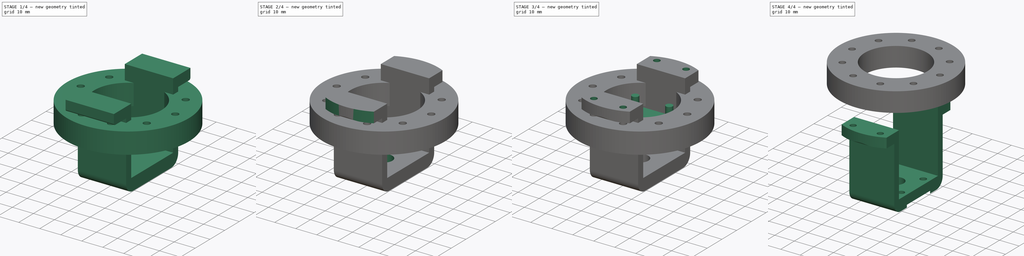
[diagram: build sequence overview — one tinted view per stage of 4, left to right]
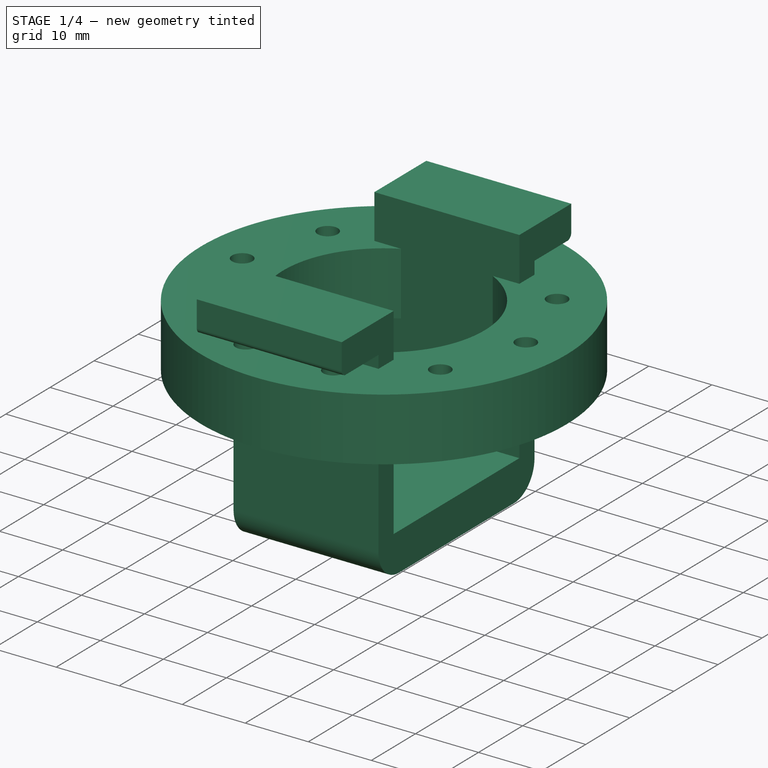
[diagram: stage 1 of 4 — iso view after this stage's code; geometry added in this stage tinted green]
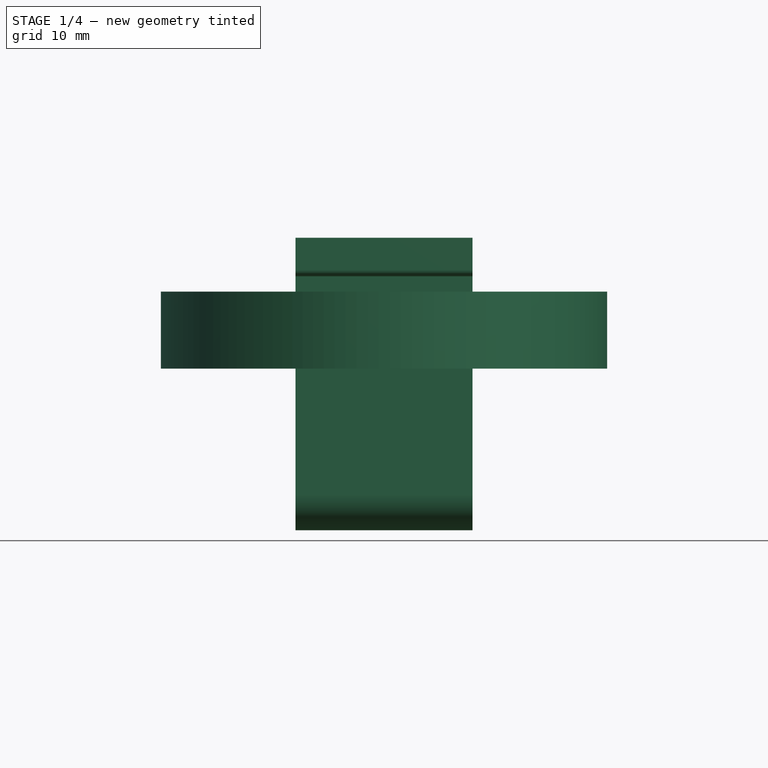
[diagram: stage 1 of 4 — front view after this stage's code; geometry added in this stage tinted green]
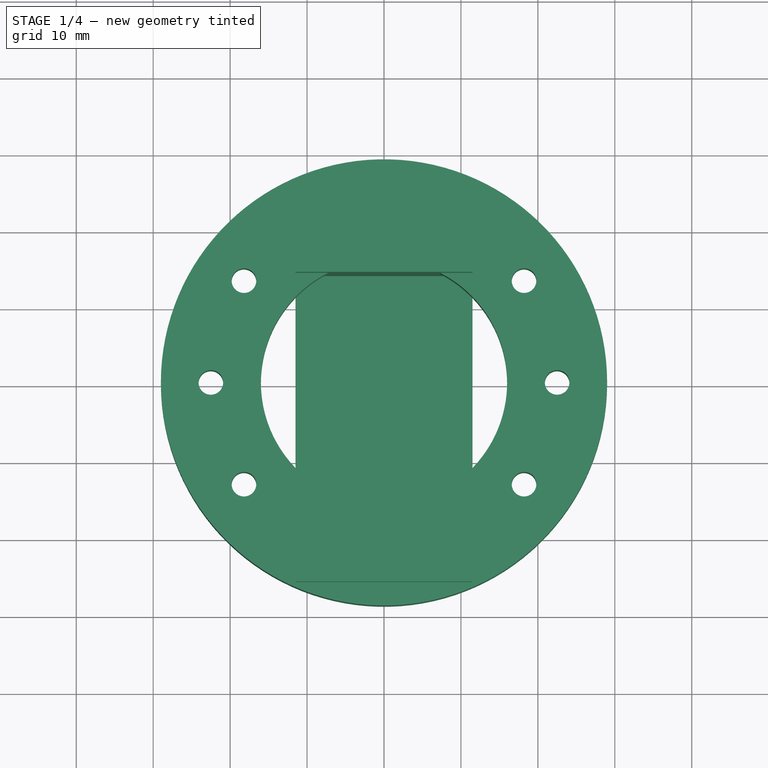
[diagram: stage 1 of 4 — top view after this stage's code; geometry added in this stage tinted green]
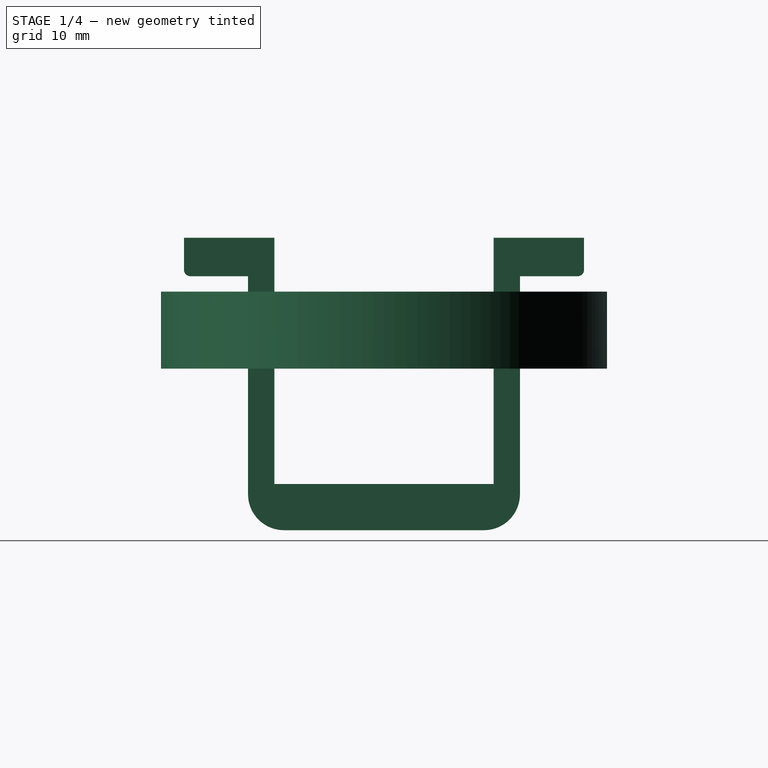
[diagram: stage 1 of 4 — right view after this stage's code; geometry added in this stage tinted green]
FCSTD DOCUMENT  (FreeCAD 1.0R39109 (Git))
Label: Robot
License: All rights reserved
LicenseURL: https://en.wikipedia.org/wiki/All_rights_reserved
objects: Part::Feature×10, Sketcher::SketchObject×7, PartDesign::Pad×5, PartDesign::Body×3, PartDesign::Hole×2, Spreadsheet::Sheet×2, PartDesign::Pocket×1, Part::Cut×1, App::TextDocument×1, Image::ImagePlane×1, App::VarSet×1
note: 52 computed .brp shape members not serialized (recipe doc carries the construction recipe); baked Part::Feature solids carry a one-line shape summary decoded from their .brp

FEATURE [PartDesign::Body] Body001  label="AS5600"
  AllowCompound = false
  Group = -> [Sketch003,Pad002,Sketch004,Pad003,Sketch005,Pad004]
  Origin = -> Origin001
  Placement = pos=(0,0,-50.5) rot=(0,0,1;0rad)
  Tip = -> Pad004
FEATURE [Sketcher::SketchObject] Sketch
  ArcFitTolerance = 1e-06
  AttachmentSupport = -> [YZ_Plane]
  FullyConstrained = true
  MakeInternals = false
  MapMode = 5
  Placement = pos=(0,0,0) rot=(0.57735,0.57735,0.57735;2.0944rad)
  sketch-geometry (20):
    g0: LineSegment StartX=-26 StartY=17 StartZ=0 EndX=-26 EndY=12.85 EndZ=0
    g1: LineSegment StartX=-25.15 StartY=12 StartZ=0 EndX=-17.67 EndY=12 EndZ=0
    g2: LineSegment StartX=26 StartY=12.85 StartZ=0 EndX=26 EndY=17 EndZ=0
    g3: LineSegment StartX=-14.25 StartY=17 StartZ=0 EndX=-14.25 EndY=-15 EndZ=0
    g4: LineSegment StartX=-14.25 StartY=-15 StartZ=0 EndX=14.25 EndY=-15 EndZ=0
    g5: LineSegment StartX=14.25 StartY=-15 StartZ=0 EndX=14.25 EndY=17 EndZ=0
    g6: LineSegment StartX=-17.67 StartY=12 StartZ=0 EndX=-17.67 EndY=-16.33 EndZ=0
    g7: LineSegment StartX=-13 StartY=-21 StartZ=0 EndX=13 EndY=-21 EndZ=0
    g8: LineSegment StartX=17.67 StartY=-16.33 StartZ=0 EndX=17.67 EndY=12 EndZ=0
    g9: LineSegment StartX=17.67 StartY=12 StartZ=0 EndX=25.15 EndY=12 EndZ=0
    g10: LineSegment StartX=-26 StartY=17 StartZ=0 EndX=-14.25 EndY=17 EndZ=0
    g11: LineSegment StartX=14.25 StartY=17 StartZ=0 EndX=26 EndY=17 EndZ=0
    g12: ArcOfCircle CenterX=-13 CenterY=-16.33 CenterZ=0 NormalX=0 NormalY=0 NormalZ=1 AngleXU=0 Radius=4.67 StartAngle=3.14159 EndAngle=4.71239
    g13: GeomPoint [constr] X=-17.67 Y=-21 Z=0
    g14: ArcOfCircle CenterX=13 CenterY=-16.33 CenterZ=0 NormalX=0 NormalY=0 NormalZ=1 AngleXU=0 Radius=4.67 StartAngle=4.71239 EndAngle=6.28319
    g15: GeomPoint [constr] X=17.67 Y=-21 Z=0
    g16: ArcOfCircle CenterX=-25.15 CenterY=12.85 CenterZ=0 NormalX=0 NormalY=0 NormalZ=1 AngleXU=0 Radius=0.85 StartAngle=3.14159 EndAngle=4.71239
    g17: GeomPoint [constr] X=-26 Y=12 Z=0
    g18: ArcOfCircle CenterX=25.15 CenterY=12.85 CenterZ=0 NormalX=0 NormalY=0 NormalZ=1 AngleXU=0 Radius=0.85 StartAngle=4.71239 EndAngle=6.28319
    g19: GeomPoint [constr] X=26 Y=12 Z=0
  constraints (43):
    c: Coincident(g3,g4)
    c: Coincident(g4,g5)
    c: Coincident(g1,g6)
    c: Coincident(g2,g11)
    c: Coincident(g8,g9)
    c: Coincident(g5,g11)
    c: DistanceX(g4,g4) = 28.5
    c: DistanceY(g13,g6) = 33
    c: Coincident(g0,g10)
    c: Coincident(g3,g10)
    c: Symmetric(g3,g5,g-2)
    c: Symmetric(g1,g8,g-2)
    c: Symmetric(g13,g15,g-2)
    c: Symmetric(g3,g4,g-2)
    c: Symmetric(g17,g19,g-2)
    c: Symmetric(g0,g2,g-2)
    c: PointOnObject(g13,g6)
    c: PointOnObject(g13,g7)
    c: Tangent(g6,g12) = -1.5708
    c: Tangent(g7,g12) = -1.5708
    c: PointOnObject(g15,g7)
    c: Tangent(g7,g14) = -1.5708
    c: Tangent(g8,g14) = -1.5708
    c: PointOnObject(g17,g0)
    c: PointOnObject(g17,g1)
    c: Tangent(g0,g16) = -1.5708
    c: Tangent(g1,g16) = -1.5708
    c: PointOnObject(g19,g2)
    c: Tangent(g2,g18) = -1.5708
    c: Tangent(g9,g18) = -1.5708
    c: Radius(g18) = 0.85
    c: Radius(g12) = 4.67
    c: Symmetric(g12,g14,g-2)
    c: Symmetric(g16,g18,g-2)
    c: DistanceX(g12,g14) = 26
    c: DistanceY(g15,g5) = 38
    c: Parallel(g3,g5)
    c: DistanceX(g0,g2) = 52
    c: Block(g3)
    c: Parallel(g6,g8)
    c: Perpendicular(g10,g3)
    c: Perpendicular(g10,g0)
    c: Perpendicular(g1,g6)
FEATURE [PartDesign::Pad] Pad
  Direction = (1,0,0)
  Length = 23
  Length2 = 10
  Midplane = true
  Placement = pos=(0,0,0) rot=(1,1,1;2.0944rad)
  Profile = -> Sketch
  ReferenceAxis = -> Sketch [N_Axis]
  Refine = true
  Suppressed = false
  Type = 0
FEATURE [App::TextDocument] Text_document  label="Text document"
FEATURE [Image::ImagePlane] _0250510_190851  label="20250510_190851"
  Placement = pos=(0.35,-0.3,-49) rot=(0,0,1;1.5708rad)
  XSize = 88.1427
  YSize = 88.1427
FEATURE [Spreadsheet::Sheet] Spreadsheet  label="encoder"
  cells = A1='hole; B1(hole)=3.2; A2='size; B2(size)=23
FEATURE [App::VarSet] VarSet
FEATURE [Sketcher::SketchObject] Sketch008  label="Joint"
  ArcFitTolerance = 1e-06
  AttachmentSupport = -> [XY_Plane003]
  FullyConstrained = true
  MakeInternals = false
  MapMode = 5
  expr: Constraints[0] = <<hand>>.hole_d
  expr: Constraints[10] = <<Robot>>#<<hand>>.bearing_d
  expr: Constraints[12] = <<hand>>.ring_d
  expr: Constraints[20] = <<Robot>>#<<hand>>.pins_d
  sketch-geometry (13):
    g0: Circle CenterX=-22.5 CenterY=-7.27001e-08 CenterZ=0 NormalX=0 NormalY=0 NormalZ=1 AngleXU=0 Radius=1.6
    g1: Circle CenterX=-18.2003 CenterY=13.2288 CenterZ=0 NormalX=0 NormalY=0 NormalZ=1 AngleXU=0 Radius=1.6
    g2: Circle CenterX=-6.9491 CenterY=21.4 CenterZ=0 NormalX=0 NormalY=0 NormalZ=1 AngleXU=0 Radius=1.6
    g3: Circle CenterX=6.9509 CenterY=21.3994 CenterZ=0 NormalX=0 NormalY=0 NormalZ=1 AngleXU=0 Radius=1.6
    g4: Circle CenterX=18.2003 CenterY=13.2288 CenterZ=0 NormalX=0 NormalY=0 NormalZ=1 AngleXU=0 Radius=1.6
    g5: Circle CenterX=22.5 CenterY=7.27001e-08 CenterZ=0 NormalX=0 NormalY=0 NormalZ=1 AngleXU=0 Radius=1.6
    g6: Circle CenterX=18.2003 CenterY=-13.2288 CenterZ=0 NormalX=0 NormalY=0 NormalZ=1 AngleXU=0 Radius=1.6
    g7: Circle CenterX=6.9491 CenterY=-21.4 CenterZ=0 NormalX=0 NormalY=0 NormalZ=1 AngleXU=0 Radius=1.6
    g8: Circle CenterX=-6.9509 CenterY=-21.3994 CenterZ=0 NormalX=0 NormalY=0 NormalZ=1 AngleXU=0 Radius=1.6
    g9: Circle CenterX=-18.2003 CenterY=-13.2288 CenterZ=0 NormalX=0 NormalY=0 NormalZ=1 AngleXU=0 Radius=1.6
    g10: Circle CenterX=0 CenterY=0 CenterZ=0 NormalX=0 NormalY=0 NormalZ=1 AngleXU=0 Radius=16
    g11: Circle CenterX=0 CenterY=0 CenterZ=0 NormalX=0 NormalY=0 NormalZ=1 AngleXU=0 Radius=29
    g12: Circle [constr] CenterX=0 CenterY=0 CenterZ=0 NormalX=0 NormalY=0 NormalZ=1 AngleXU=0 Radius=22.5
  constraints (22):
    c: Diameter(g0) = 3.2
    c: Equal(g0, g1-g9) x9
    c: Diameter(g10) = 32
    c: Coincident(g10,g-1)
    c: Diameter(g11) = 58
    c: Coincident(g11,g10)
    c: DistanceX(g0) = -22.5
    c: Distance(g0,g1) = 13.91
    c: Coincident(g12,g10)
    c: PointOnObject(g0,g12)
    c: PointOnObject(g1,g12)
    c: PointOnObject(g2,g12)
    c: Diameter(g12) = 45
    c: PointOnObject(g3,g12)
    c: DistanceY(g2) = 21.4
    c: Symmetric(g0,g5,g10)
    c: Symmetric(g1,g6,g10)
    c: Symmetric(g7,g2,g10)
    c: Symmetric(g8,g3,g10)
    c: Symmetric(g4,g9,g10)
    c: DistanceX(g2,g3) = 13.9
    c: Symmetric(g1,g4,g-2)
FEATURE [Spreadsheet::Sheet] Spreadsheet001  label="hand"
  cells = A1='pins_d; B1(pins_d)=45; A2='hole_d; B2(hole_d)=3.2; A3='ring_d; B3(ring_d)=58; A4='bearing_d; B4(bearing_d)=32
FEATURE [PartDesign::Pad] Pad005
  Direction = (0,0,1)
  Length = 10
  Length2 = 10
  Profile = -> Sketch008
  ReferenceAxis = -> Sketch008 [N_Axis]
  Refine = true
  Suppressed = false
  Type = 0
FEATURE [PartDesign::Body] Body002  label="Hand"
  AllowCompound = false
  Group = -> [Sketch008,Pad005]
  Origin = -> Origin002
  Tip = -> Pad005
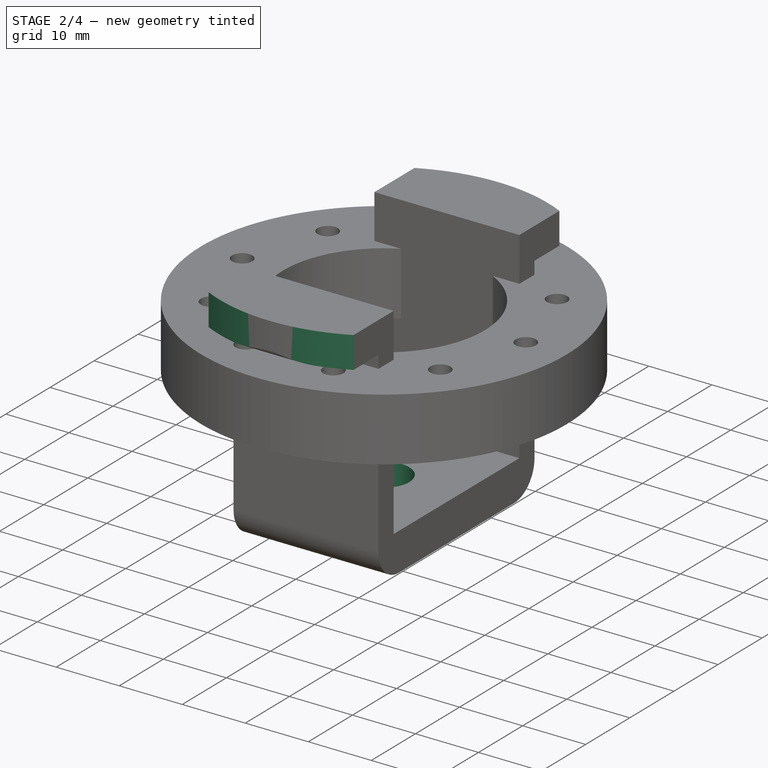
[diagram: stage 2 of 4 — iso view after this stage's code; geometry added in this stage tinted green]
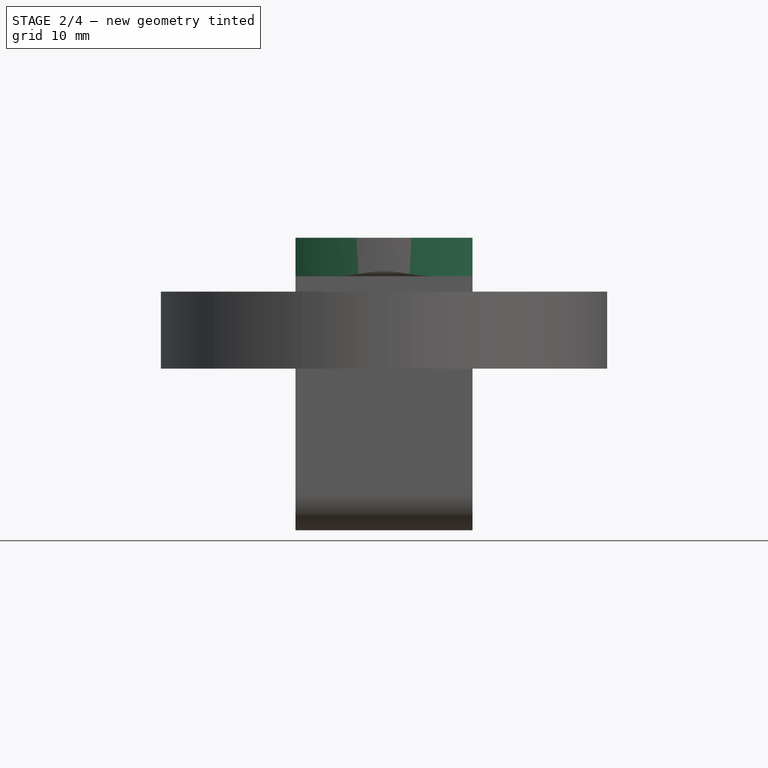
[diagram: stage 2 of 4 — front view after this stage's code; geometry added in this stage tinted green]
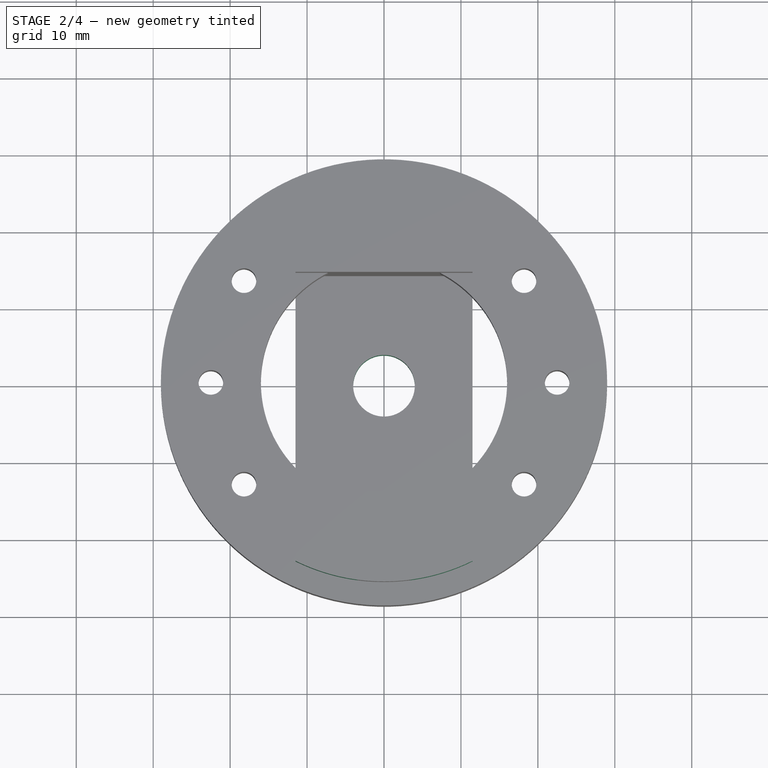
[diagram: stage 2 of 4 — top view after this stage's code; geometry added in this stage tinted green]
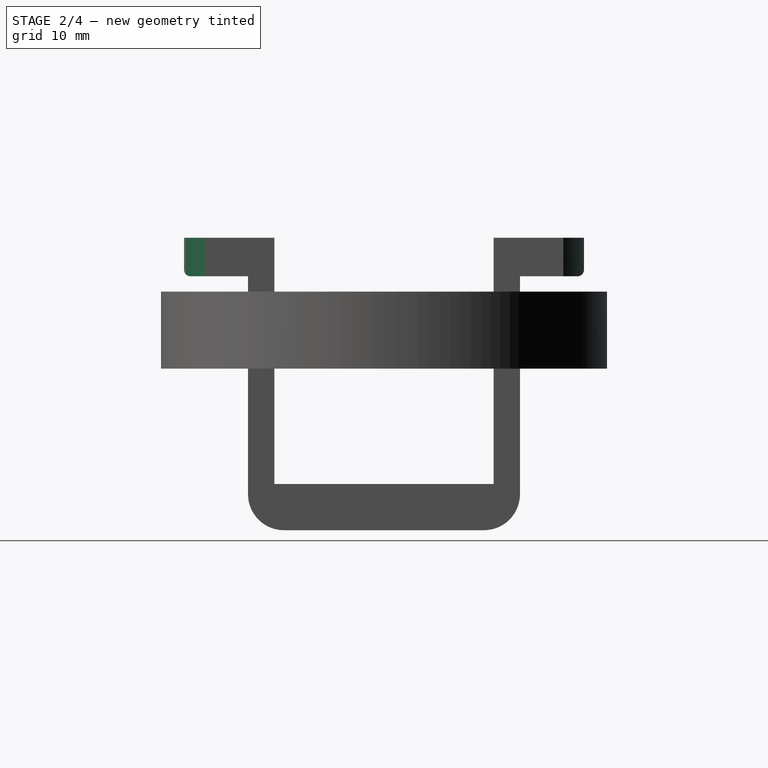
[diagram: stage 2 of 4 — right view after this stage's code; geometry added in this stage tinted green]
FEATURE [Part::Feature] Shape009  label="Motor"
  Placement = pos=(0,0,-41.3) rot=(0,0,1;0rad)
  shape: bbox 32.81 x 32.81 x 54.34 mm, 9 faces (baked)
FEATURE [Sketcher::SketchObject] Sketch006  label="Holes"
  ArcFitTolerance = 1e-06
  AttachmentSupport = -> [XY_Plane]
  FullyConstrained = true
  MakeInternals = false
  MapMode = 5
  sketch-geometry (2):
    g0: Circle CenterX=0 CenterY=0 CenterZ=0 NormalX=0 NormalY=0 NormalZ=1 AngleXU=0 Radius=26
    g1: Circle CenterX=0 CenterY=0 CenterZ=0 NormalX=0 NormalY=0 NormalZ=1 AngleXU=0 Radius=50
  constraints (4):
    c: Radius(g0) = 26
    c: Coincident(g0,g-1)
    c: Coincident(g1,g0)
    c: Radius(g1) = 50
FEATURE [PartDesign::Hole] Hole
  BaseFeature = -> Pad
  CustomThreadClearance = 0
  Depth = 25
  DepthType = 0
  Diameter = 8
  DrillForDepth = false
  DrillPoint = 1
  DrillPointAngle = 118
  HoleCutCountersinkAngle = 90
  HoleCutCustomValues = false
  HoleCutDepth = 0
  HoleCutDiameter = 6.1
  HoleCutType = 0
  ModelThread = false
  Placement = pos=(0,0,0) rot=(1,1,1;2.0944rad)
  Profile = -> Sketch006
  Refine = true
  Suppressed = false
  Tapered = false
  TaperedAngle = 90
  ThreadClass = 0
  ThreadDepth = 25
  ThreadDepthType = 0
  ThreadDirection = 0
  ThreadFit = 0
  ThreadSize = 0
  ThreadType = 0
  Threaded = false
  UseCustomThreadClearance = false
FEATURE [PartDesign::Pocket] Pocket
  BaseFeature = -> Hole
  Direction = (0,0,-1)
  Length = 50
  Length2 = 5
  Placement = pos=(0,0,0) rot=(1,1,1;2.0944rad)
  Profile = -> Sketch006
  ReferenceAxis = -> Sketch006 [N_Axis]
  Refine = true
  Reversed = true
  Suppressed = false
  Type = 0
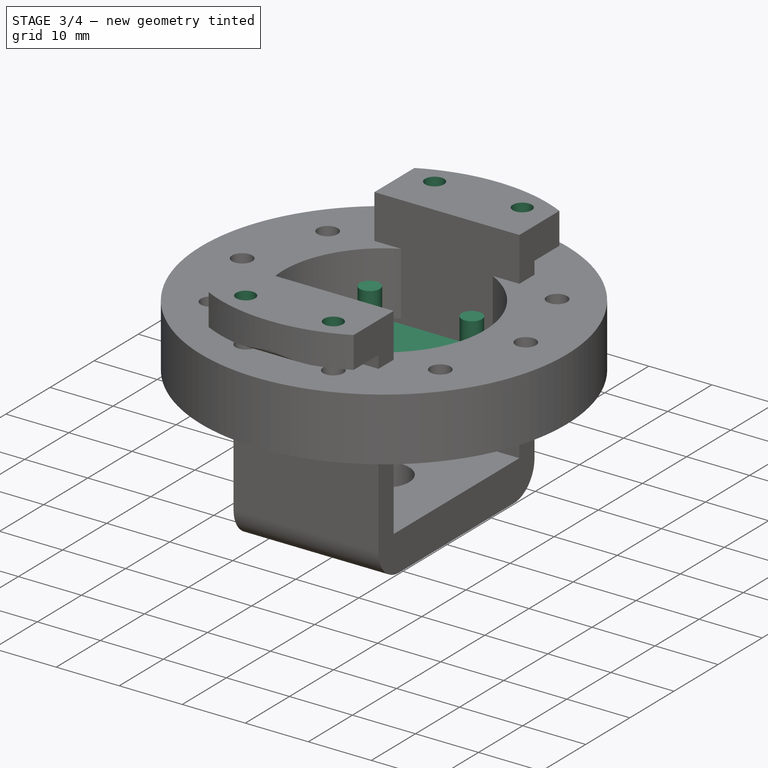
[diagram: stage 3 of 4 — iso view after this stage's code; geometry added in this stage tinted green]
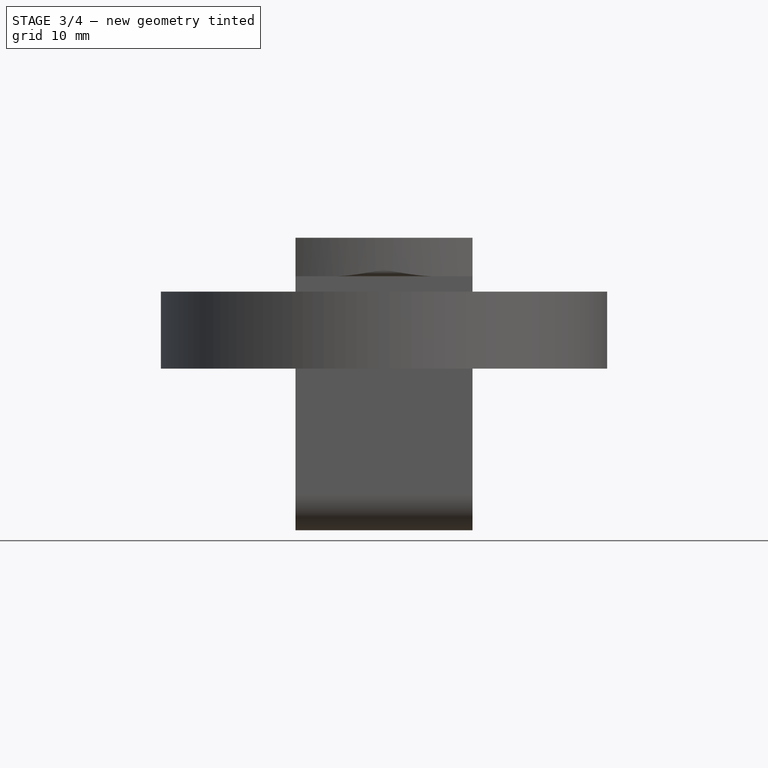
[diagram: stage 3 of 4 — front view after this stage's code; geometry added in this stage tinted green]
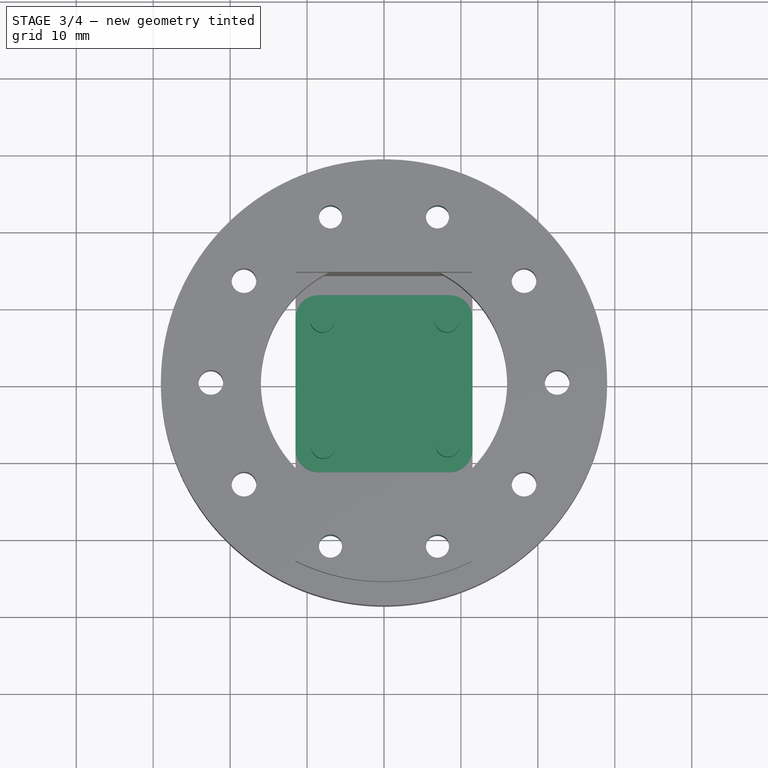
[diagram: stage 3 of 4 — top view after this stage's code; geometry added in this stage tinted green]
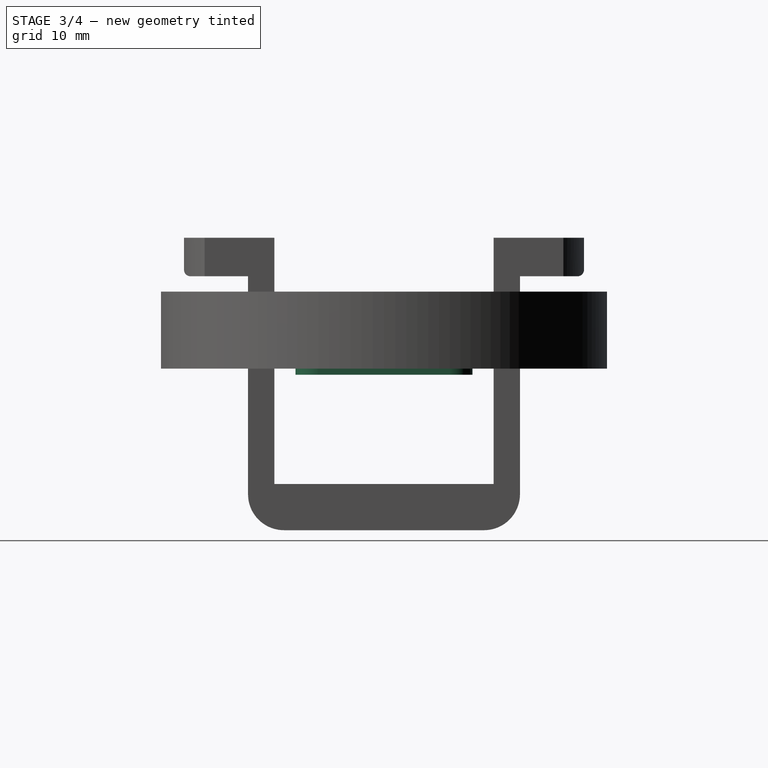
[diagram: stage 3 of 4 — right view after this stage's code; geometry added in this stage tinted green]
FEATURE [Sketcher::SketchObject] Sketch003  label="Base"
  ArcFitTolerance = 1e-06
  AttachmentSupport = -> [XY_Plane002]
  FullyConstrained = true
  MakeInternals = false
  MapMode = 5
  expr: Constraints[4] = Encoder#<<encoder>>.size
  expr: Constraints[5] = Encoder#<<encoder>>.size
  sketch-geometry (12):
    g0: LineSegment StartX=-11.5 StartY=8.5 StartZ=0 EndX=-11.5 EndY=-8.5 EndZ=0
    g1: LineSegment StartX=-8.5 StartY=-11.5 StartZ=0 EndX=8.5 EndY=-11.5 EndZ=0
    g2: LineSegment StartX=11.5 StartY=-8.5 StartZ=0 EndX=11.5 EndY=8.5 EndZ=0
    g3: LineSegment StartX=8.5 StartY=11.5 StartZ=0 EndX=-8.5 EndY=11.5 EndZ=0
    g4: ArcOfCircle CenterX=-8.5 CenterY=-8.5 CenterZ=0 NormalX=0 NormalY=0 NormalZ=1 AngleXU=0 Radius=3 StartAngle=3.14159 EndAngle=4.71239
    g5: GeomPoint [constr] X=-11.5 Y=-11.5 Z=0
    g6: ArcOfCircle CenterX=8.5 CenterY=8.5 CenterZ=0 NormalX=0 NormalY=0 NormalZ=1 AngleXU=0 Radius=3 StartAngle=1e-16 EndAngle=1.5708
    g7: GeomPoint [constr] X=11.5 Y=11.5 Z=0
    g8: ArcOfCircle CenterX=8.5 CenterY=-8.5 CenterZ=0 NormalX=0 NormalY=0 NormalZ=1 AngleXU=0 Radius=3 StartAngle=4.71239 EndAngle=6.28319
    g9: GeomPoint [constr] X=11.5 Y=-11.5 Z=0
    g10: ArcOfCircle CenterX=-8.5 CenterY=8.5 CenterZ=0 NormalX=0 NormalY=0 NormalZ=1 AngleXU=0 Radius=3 StartAngle=1.5708 EndAngle=3.14159
    g11: GeomPoint [constr] X=-11.5 Y=11.5 Z=0
  constraints (27):
    c: Vertical(g0)
    c: Vertical(g2)
    c: Horizontal(g1)
    c: Horizontal(g3)
    c: DistanceX(g11,g7) = 23
    c: DistanceY(g5,g11) = 23
    c: Symmetric(g11,g9,g-1)
    c: PointOnObject(g5,g0)
    c: PointOnObject(g5,g1)
    c: Tangent(g0,g4) = -1.5708
    c: Tangent(g1,g4) = -1.5708
    c: PointOnObject(g7,g2)
    c: PointOnObject(g7,g3)
    c: Tangent(g2,g6) = -1.5708
    c: Tangent(g3,g6) = -1.5708
    c: PointOnObject(g9,g1)
    c: PointOnObject(g9,g2)
    c: Tangent(g1,g8) = -1.5708
    c: Tangent(g2,g8) = -1.5708
    c: PointOnObject(g11,g0)
    c: PointOnObject(g11,g3)
    c: Tangent(g0,g10) = -1.5708
    c: Tangent(g3,g10) = -1.5708
    c: Diameter(g4) = 6
    c: Diameter(g10) = 6
    c: Diameter(g8) = 6
    c: Diameter(g6) = 6
FEATURE [PartDesign::Pad] Pad002  label="Pad16"
  Direction = (0,0,1)
  Length = 1.6
  Length2 = 10
  Midplane = true
  Profile = -> Sketch003
  ReferenceAxis = -> Sketch003 [N_Axis]
  Refine = true
  Suppressed = false
  Type = 0
FEATURE [Sketcher::SketchObject] Sketch004  label="Screws"
  ArcFitTolerance = 1e-06
  AttachmentSupport = -> [Pad002]
  FullyConstrained = true
  MakeInternals = false
  MapMode = 5
  Placement = pos=(0,0,0.8) rot=(0,0,1;0rad)
  expr: Constraints[0] = Encoder#<<encoder>>.hole
  expr: Constraints[1] = Encoder#<<encoder>>.hole
  expr: Constraints[2] = Encoder#<<encoder>>.hole
  expr: Constraints[3] = Encoder#<<encoder>>.hole
  sketch-geometry (4):
    g0: Circle CenterX=-8 CenterY=8.2 CenterZ=0 NormalX=0 NormalY=0 NormalZ=1 AngleXU=0 Radius=1.6
    g1: Circle CenterX=8.2 CenterY=8.2 CenterZ=0 NormalX=0 NormalY=0 NormalZ=1 AngleXU=0 Radius=1.6
    g2: Circle CenterX=-7.9 CenterY=-8.2 CenterZ=0 NormalX=0 NormalY=0 NormalZ=1 AngleXU=0 Radius=1.6
    g3: Circle CenterX=8.3 CenterY=-8 CenterZ=0 NormalX=0 NormalY=0 NormalZ=1 AngleXU=0 Radius=1.6
  constraints (12):
    c: Diameter(g0) = 3.2
    c: Diameter(g1) = 3.2
    c: Diameter(g2) = 3.2
    c: Diameter(g3) = 3.2
    c: DistanceX(g0,g-1) = 8
    c: DistanceY(g-1,g0) = 8.2
    c: DistanceY(g-1,g1) = 8.2
    c: DistanceX(g-1,g1) = 8.2
    c: DistanceX(g-1,g3) = 8.3
    c: DistanceY(g3,g-1) = 8
    c: DistanceY(g2,g-1) = 8.2
    c: DistanceX(g2,g-1) = 7.9
FEATURE [PartDesign::Pad] Pad003  label="Pad40"
  BaseFeature = -> Pad002
  Direction = (0,0,1)
  Length = 6
  Length2 = 10
  Profile = -> Sketch004
  ReferenceAxis = -> Sketch004 [N_Axis]
  Refine = true
  Suppressed = false
  Type = 0
FEATURE [Sketcher::SketchObject] Sketch007  label="Pins"
  ArcFitTolerance = 1e-06
  AttachmentSupport = -> [XY_Plane]
  FullyConstrained = true
  MakeInternals = false
  MapMode = 5
  sketch-geometry (4):
    g0: Circle CenterX=-6.955 CenterY=21.3981 CenterZ=0 NormalX=0 NormalY=0 NormalZ=1 AngleXU=0 Radius=1.5
    g1: Circle CenterX=6.955 CenterY=21.3981 CenterZ=0 NormalX=0 NormalY=0 NormalZ=1 AngleXU=0 Radius=1.5
    g2: Circle CenterX=-6.955 CenterY=-21.3981 CenterZ=0 NormalX=0 NormalY=0 NormalZ=1 AngleXU=0 Radius=1.5
    g3: Circle CenterX=6.955 CenterY=-21.3981 CenterZ=0 NormalX=0 NormalY=0 NormalZ=1 AngleXU=0 Radius=1.5
  constraints (9):
    c: Radius(g0) = 1.5
    c: Radius(g1) = 1.5
    c: Radius(g2) = 1.5
    c: Radius(g3) = 1.5
    c: Symmetric(g0,g2,g-1)
    c: Symmetric(g0,g1,g-2)
    c: Symmetric(g2,g3,g-2)
    c: Distance(g-1,g0) = 22.5
    c: DistanceX(g2,g3) = 13.91
FEATURE [PartDesign::Hole] Hole001
  BaseFeature = -> Pocket
  CustomThreadClearance = 0
  Depth = 32
  DepthType = 0
  Diameter = 3
  DrillForDepth = false
  DrillPoint = 1
  DrillPointAngle = 118
  HoleCutCountersinkAngle = 90
  HoleCutCustomValues = false
  HoleCutDepth = 0
  HoleCutDiameter = 6.1
  HoleCutType = 0
  ModelThread = false
  Placement = pos=(0,0,0) rot=(1,1,1;2.0944rad)
  Profile = -> Sketch007
  Refine = true
  Reversed = true
  Suppressed = false
  Tapered = false
  TaperedAngle = 90
  ThreadClass = 0
  ThreadDepth = 32
  ThreadDepthType = 0
  ThreadDirection = 0
  ThreadFit = 0
  ThreadSize = 0
  ThreadType = 0
  Threaded = false
  UseCustomThreadClearance = false
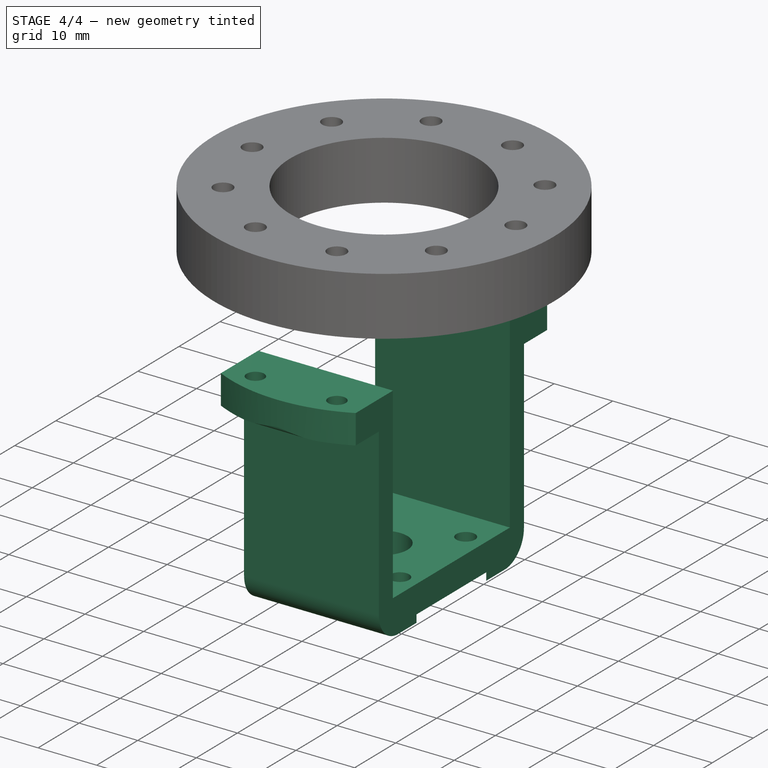
[diagram: stage 4 of 4 — iso view after this stage's code; geometry added in this stage tinted green]
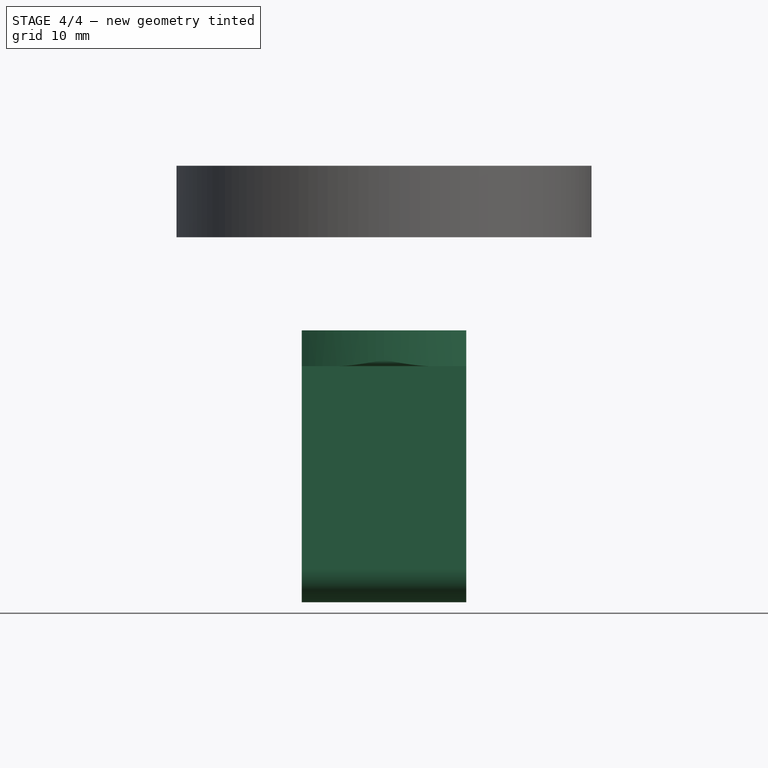
[diagram: stage 4 of 4 — front view after this stage's code; geometry added in this stage tinted green]
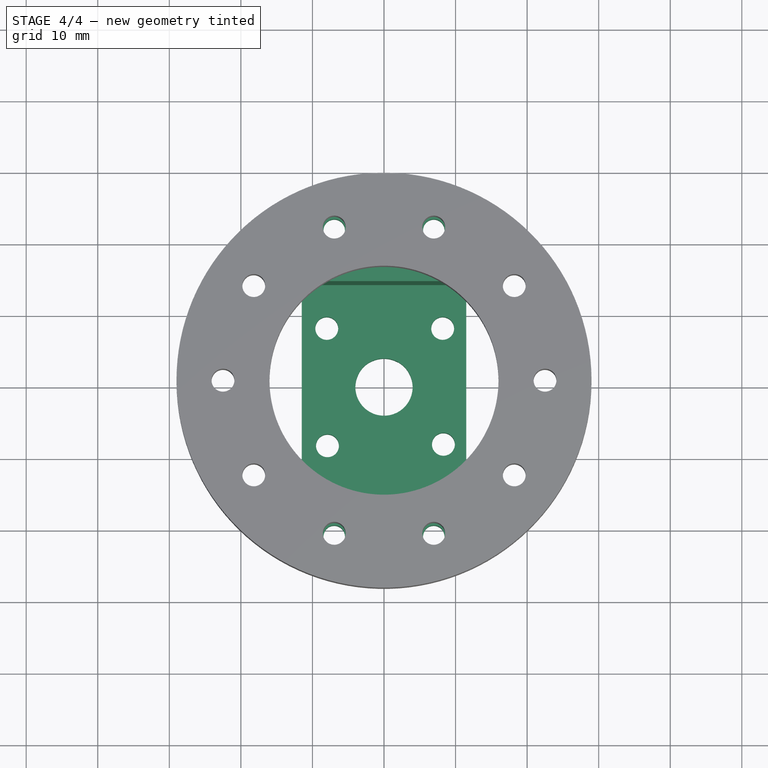
[diagram: stage 4 of 4 — top view after this stage's code; geometry added in this stage tinted green]
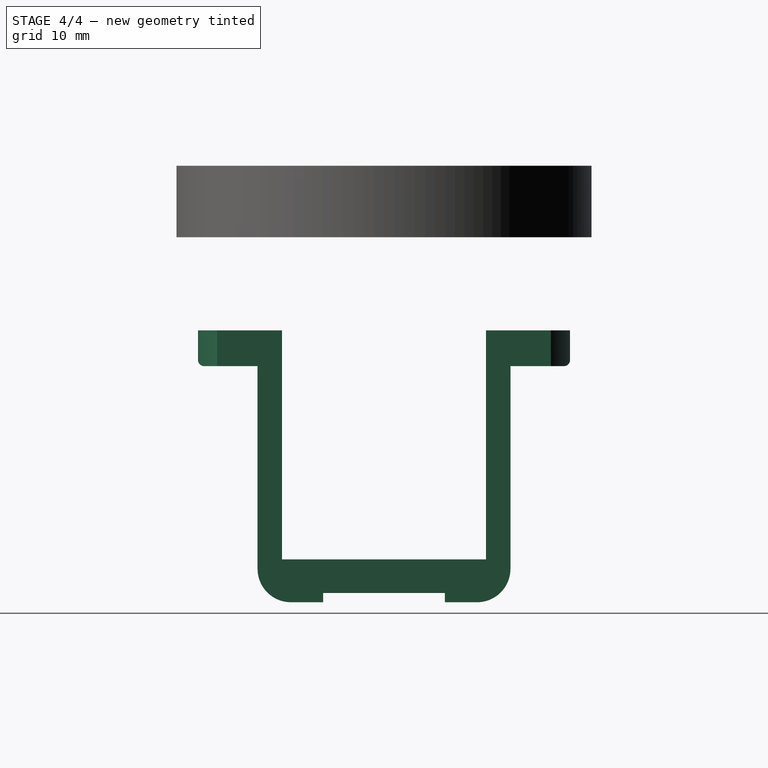
[diagram: stage 4 of 4 — right view after this stage's code; geometry added in this stage tinted green]
FEATURE [Sketcher::SketchObject] Sketch005  label="Elements"
  ArcFitTolerance = 1e-06
  AttachmentSupport = -> [Pad003]
  FullyConstrained = true
  MakeInternals = false
  MapMode = 5
  Placement = pos=(0,0,0.8) rot=(0,1,0;3.14159rad)
  sketch-geometry (21):
    g0: ArcOfCircle CenterX=-5.6 CenterY=6.7 CenterZ=0 NormalX=0 NormalY=0 NormalZ=1 AngleXU=0 Radius=1.5 StartAngle=1.5708 EndAngle=4.71239
    g1: ArcOfCircle CenterX=4 CenterY=6.7 CenterZ=0 NormalX=0 NormalY=0 NormalZ=1 AngleXU=0 Radius=1.5 StartAngle=4.71239 EndAngle=7.85398
    g2: LineSegment StartX=-5.6 StartY=8.2 StartZ=0 EndX=4 EndY=8.2 EndZ=0
    g3: LineSegment StartX=-5.6 StartY=5.2 StartZ=0 EndX=4 EndY=5.2 EndZ=0
    g4: ArcOfCircle CenterX=-3.5 CenterY=-6.8 CenterZ=0 NormalX=0 NormalY=0 NormalZ=1 AngleXU=0 Radius=1.5 StartAngle=1.5708 EndAngle=4.71239
    g5: ArcOfCircle CenterX=3.5 CenterY=-6.8 CenterZ=0 NormalX=0 NormalY=0 NormalZ=1 AngleXU=0 Radius=1.5 StartAngle=4.71239 EndAngle=7.85398
    g6: LineSegment StartX=-3.5 StartY=-5.3 StartZ=0 EndX=3.5 EndY=-5.3 EndZ=0
    g7: LineSegment StartX=-3.5 StartY=-8.3 StartZ=0 EndX=3.5 EndY=-8.3 EndZ=0
    g8: LineSegment StartX=-3.5 StartY=-3.5 StartZ=0 EndX=3.5 EndY=-3.5 EndZ=0
    g9: LineSegment StartX=3.5 StartY=-3.5 StartZ=0 EndX=3.5 EndY=3.5 EndZ=0
    g10: LineSegment StartX=3.5 StartY=3.5 StartZ=0 EndX=-3.5 EndY=3.5 EndZ=0
    g11: LineSegment StartX=-3.5 StartY=3.5 StartZ=0 EndX=-3.5 EndY=-3.5 EndZ=0
    g12: GeomPoint [constr] X=0 Y=0 Z=0
    g13: ArcOfCircle CenterX=-5.6 CenterY=-3.5 CenterZ=0 NormalX=0 NormalY=0 NormalZ=1 AngleXU=0 Radius=1.4 StartAngle=3.14159 EndAngle=6.28319
    g14: ArcOfCircle CenterX=-5.6 CenterY=3.5 CenterZ=0 NormalX=0 NormalY=0 NormalZ=1 AngleXU=0 Radius=1.4 StartAngle=-3.4142e-12 EndAngle=3.14159
    g15: LineSegment StartX=-7 StartY=-3.5 StartZ=0 EndX=-7 EndY=3.5 EndZ=0
    g16: LineSegment StartX=-4.2 StartY=-3.5 StartZ=0 EndX=-4.2 EndY=3.5 EndZ=0
    g17: ArcOfCircle CenterX=7.4 CenterY=4 CenterZ=0 NormalX=0 NormalY=0 NormalZ=1 AngleXU=0 Radius=1.5 StartAngle=0 EndAngle=3.14159
    g18: ArcOfCircle CenterX=7.4 CenterY=-3.38 CenterZ=0 NormalX=0 NormalY=0 NormalZ=1 AngleXU=0 Radius=1.5 StartAngle=3.14159 EndAngle=6.28319
    g19: LineSegment StartX=8.9 StartY=4 StartZ=0 EndX=8.9 EndY=-3.38 EndZ=0
    g20: LineSegment StartX=5.9 StartY=4 StartZ=0 EndX=5.9 EndY=-3.38 EndZ=0
  constraints (51):
    c: Tangent(g0,g2) = 1.5708
    c: Tangent(g0,g3) = -1.5708
    c: Tangent(g1,g2) = 1.5708
    c: Tangent(g1,g3) = -1.5708
    c: Equal(g0,g1)
    c: Tangent(g4,g6) = 1.5708
    c: Tangent(g4,g7) = -1.5708
    c: Tangent(g5,g6) = 1.5708
    c: Tangent(g5,g7) = -1.5708
    c: Equal(g4,g5)
    c: Symmetric(g4,g5,g-2)
    c: Radius(g0) = 1.5
    c: Radius(g4) = 1.5
    c: Coincident(g8,g9)
    c: Coincident(g9,g10)
    c: Coincident(g10,g11)
    c: Coincident(g11,g8)
    c: Horizontal(g8)
    c: Horizontal(g10)
    c: Vertical(g9)
    c: Vertical(g11)
    c: Symmetric(g10,g8,g12)
    c: Distance(g9,g11) = 7
    c: Distance(g8,g10) = 7
    c: Coincident(g12,g-1)
    c: DistanceX(g12,g1) = 4
    c: DistanceX(g12,g5) = 3.5
    c: DistanceY(g12,g1) = 6.7
    c: DistanceY(g5,g12) = 6.8
    c: Tangent(g13,g15) = 1.5708
    c: Tangent(g13,g16) = -1.5708
    c: Tangent(g14,g15) = 1.5708
    c: Tangent(g14,g16) = -1.5708
    c: Equal(g13,g14)
    c: Radius(g14) = 1.4
    c: DistanceY(g14) = 3.5
    c: DistanceY(g13,g-1) = 3.5
    c: Tangent(g17,g19) = 1.5708
    c: Tangent(g17,g20) = -1.5708
    c: Tangent(g18,g19) = 1.5708
    c: Tangent(g18,g20) = -1.5708
    c: Equal(g17,g18)
    c: Radius(g17) = 1.5
    c: DistanceY(g18,g-1) = 3.38
    c: DistanceX(g18) = 7.4
    c: Vertical(g15)
    c: DistanceX(g13,g12) = 5.6
    c: DistanceX(g0,g12) = 5.6
    c: DistanceY(g12,g17) = 4
    c: Vertical(g19)
    c: Horizontal(g3)
FEATURE [Part::Feature] Shape  label="Eccentric"
  shape: bbox 12.7 x 10 x 8 mm, 8 faces (baked)
FEATURE [Part::Feature] Shape001  label="Cycloid"
  Placement = pos=(-1.35,0,0) rot=(0,0,1;0rad)
  shape: bbox 40.76 x 41.22 x 4 mm, 806 faces (baked)
FEATURE [Part::Feature] Shape002  label="ContrCycloid"
  Placement = pos=(1.35,0,4) rot=(0,0,1;3.14159rad)
  shape: bbox 40.76 x 41.22 x 4 mm, 806 faces (baked)
FEATURE [Part::Feature] Shape003  label="ExternalBearers"
  shape: bbox 51.1 x 48.9 x 8.1 mm, 40 faces, 10 solids (baked)
FEATURE [Part::Feature] Shape004  label="RollerForth"
  shape: bbox 41.6 x 41.6 x 11 mm, 10 faces (baked)
FEATURE [Part::Feature] Shape005  label="RollerBack"
  shape: bbox 38 x 38 x 4.5 mm, 30 faces (baked)
FEATURE [Part::Feature] Shape006  label="InternalBearers"
  shape: bbox 25.23 x 28.18 x 8.1 mm, 12 faces, 3 solids (baked)
FEATURE [Part::Feature] Shape007  label="Ring"
  shape: bbox 53 x 53 x 27 mm, 130 faces (baked)
FEATURE [Part::Feature] Shape008  label="Cover"
  shape: bbox 53 x 53 x 12.5 mm, 113 faces (baked)
FEATURE [PartDesign::Pad] Pad004  label="Pad15"
  BaseFeature = -> Pad003
  Direction = (0,0,-1)
  Length = 1.5
  Length2 = 10
  Profile = -> Sketch005
  ReferenceAxis = -> Sketch005 [N_Axis]
  Refine = true
  Reversed = true
  Suppressed = false
  Type = 0
FEATURE [PartDesign::Body] Body  label="Holder"
  AllowCompound = false
  Group = -> [Sketch,Pad,Sketch006,Hole,Pocket,Sketch007,Hole001]
  Origin = -> Origin
  Placement = pos=(0,0,-30) rot=(0,0,1;0rad)
  Tip = -> Hole001
FEATURE [Part::Cut] Cut
  Base = -> Body
  Refine = true
  Tool = -> Body001
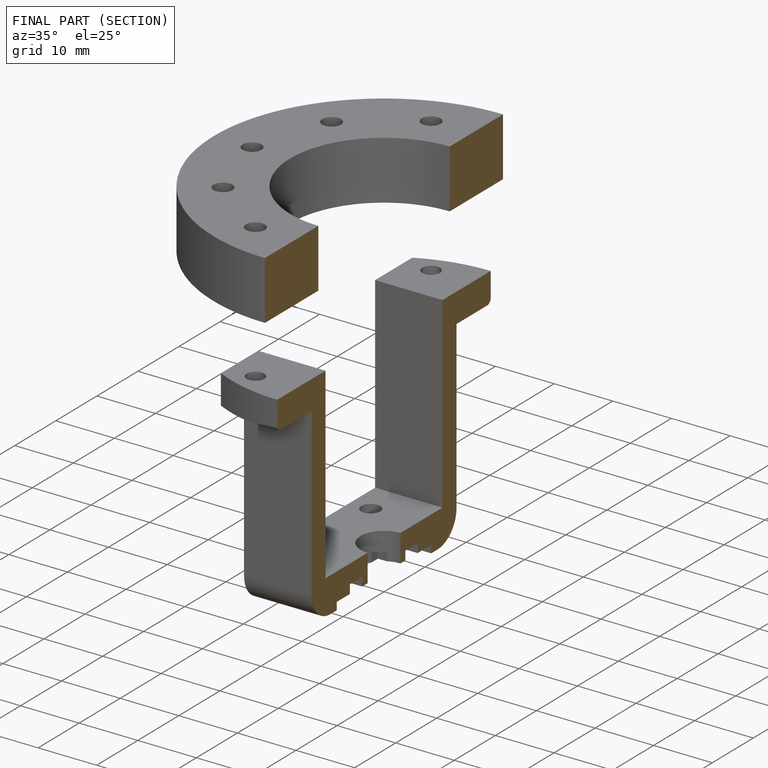
[diagram: finished part — half-section view (interior)]
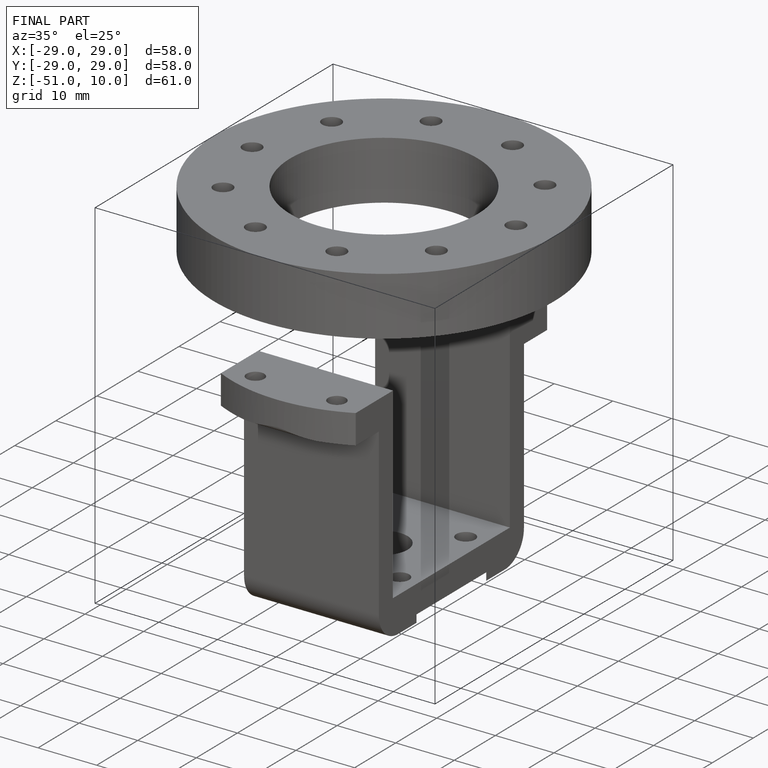
[diagram: finished part — iso view with bounding-box wireframe]
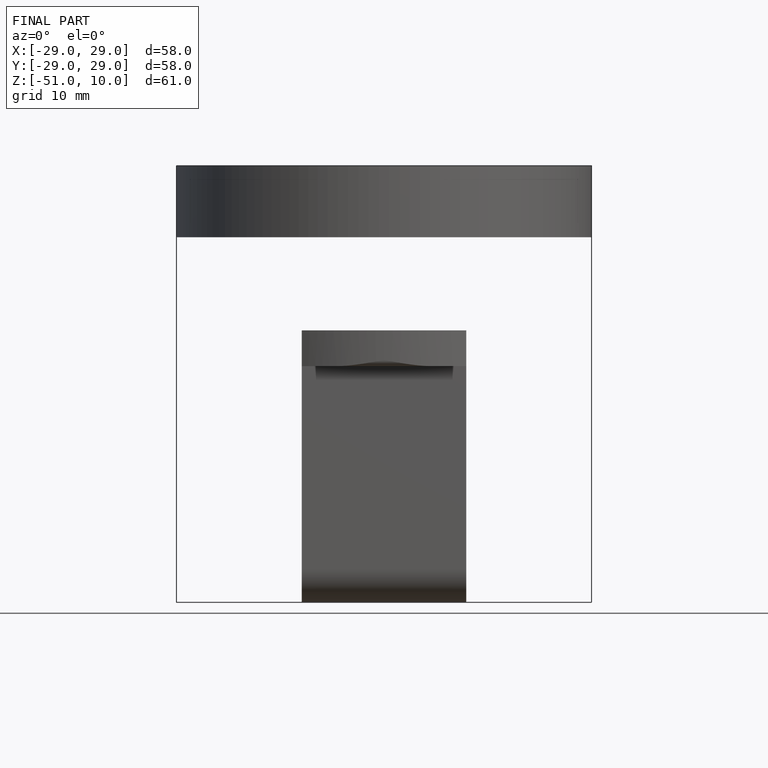
[diagram: finished part — front view with bounding-box wireframe]
